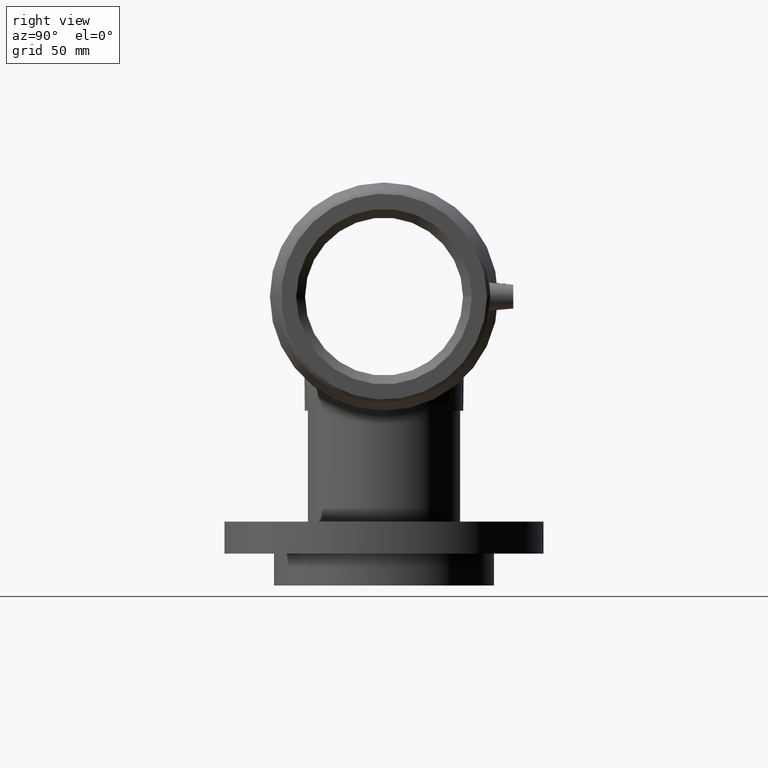
[diagram: clean part render]
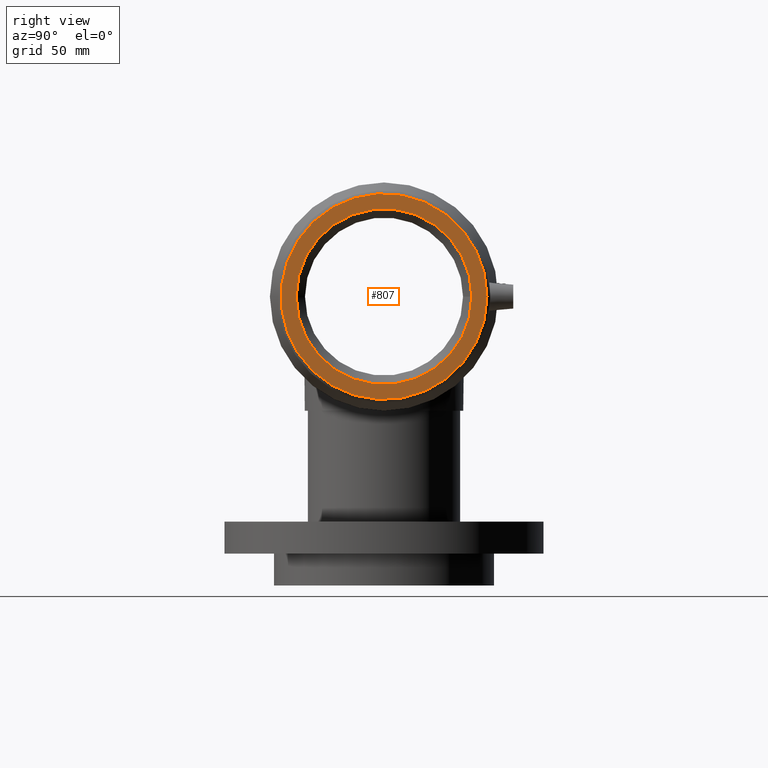
[diagram: same view with one face highlighted and labeled with its STEP entity id]
A machine part, right view. The second image highlights one B-rep face of the part: STEP entity #807.
In plain terms, the highlighted planar face has unit normal (1, 0, 0).
Its self-contained STEP definition (entity closure, byte-faithful):
#41=PLANE('',#929);
#104=FACE_BOUND('',#396,.T.);
#173=CIRCLE('',#928,64.50015);
#174=CIRCLE('',#930,55.);
#271=FACE_OUTER_BOUND('',#395,.T.);
#395=EDGE_LOOP('',(#729));
#396=EDGE_LOOP('',(#730));
#496=VERTEX_POINT('',#1825);
#497=VERTEX_POINT('',#1828);
#578=EDGE_CURVE('',#496,#496,#173,.T.);
#579=EDGE_CURVE('',#497,#497,#174,.T.);
#729=ORIENTED_EDGE('',*,*,#578,.T.);
#730=ORIENTED_EDGE('',*,*,#579,.F.);
#807=ADVANCED_FACE('',(#271,#104),#41,.T.);
#928=AXIS2_PLACEMENT_3D('',#1826,#1169,#1170);
#929=AXIS2_PLACEMENT_3D('',#1827,#1171,#1172);
#930=AXIS2_PLACEMENT_3D('',#1829,#1173,#1174);
#1169=DIRECTION('center_axis',(1.,0.,0.));
#1170=DIRECTION('ref_axis',(0.,0.,-1.));
#1171=DIRECTION('center_axis',(1.,0.,0.));
#1172=DIRECTION('ref_axis',(0.,0.,-1.));
#1173=DIRECTION('center_axis',(1.,0.,0.));
#1174=DIRECTION('ref_axis',(0.,0.,-1.));
#1825=CARTESIAN_POINT('',(163.,64.50015,0.));
#1826=CARTESIAN_POINT('Origin',(163.,0.,0.));
#1827=CARTESIAN_POINT('Origin',(163.,55.,0.));
#1828=CARTESIAN_POINT('',(163.,55.,0.));
#1829=CARTESIAN_POINT('Origin',(163.,0.,0.));